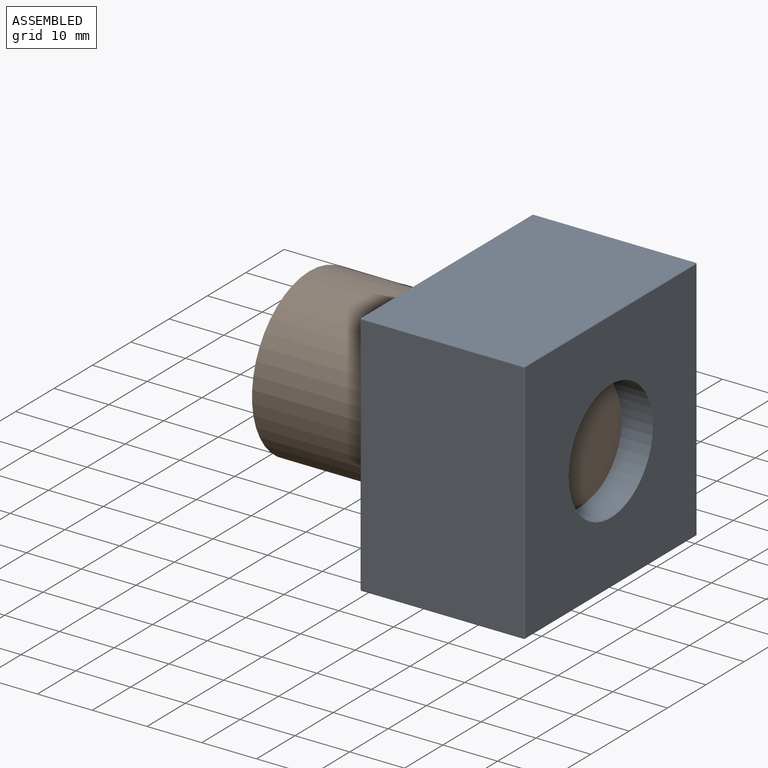
[diagram: assembled view]
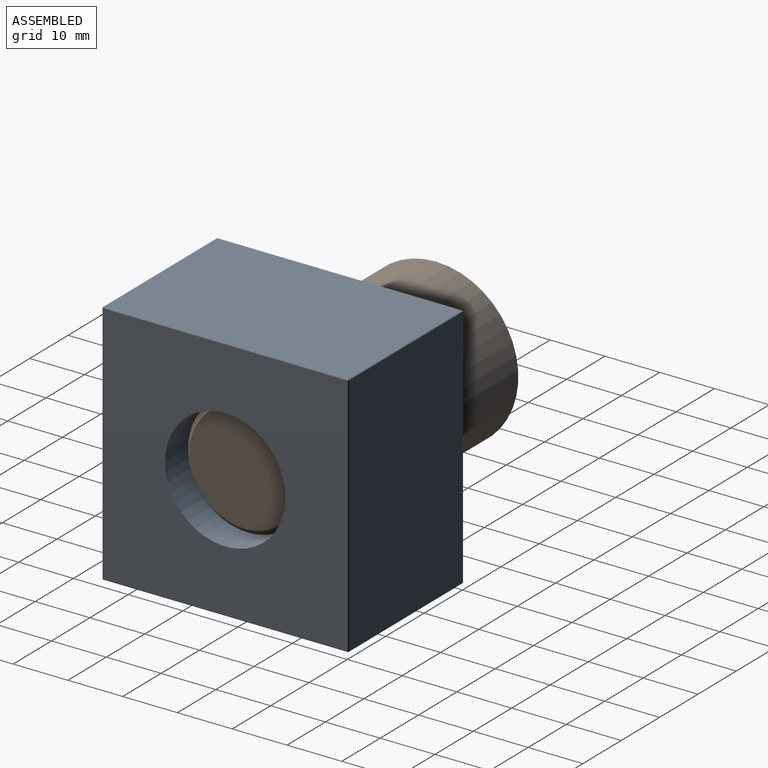
[diagram: assembled view, second angle]
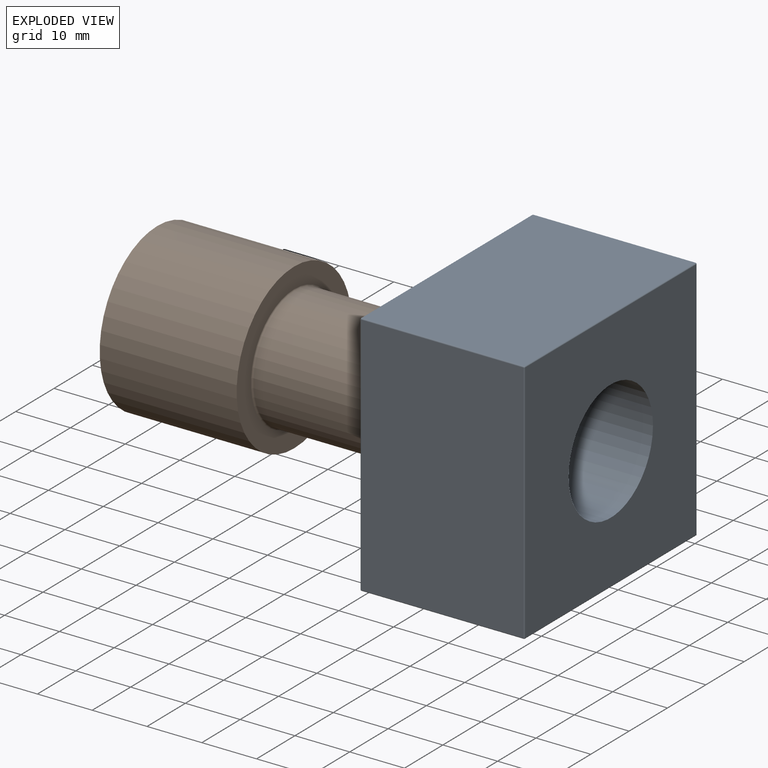
[diagram: exploded view]
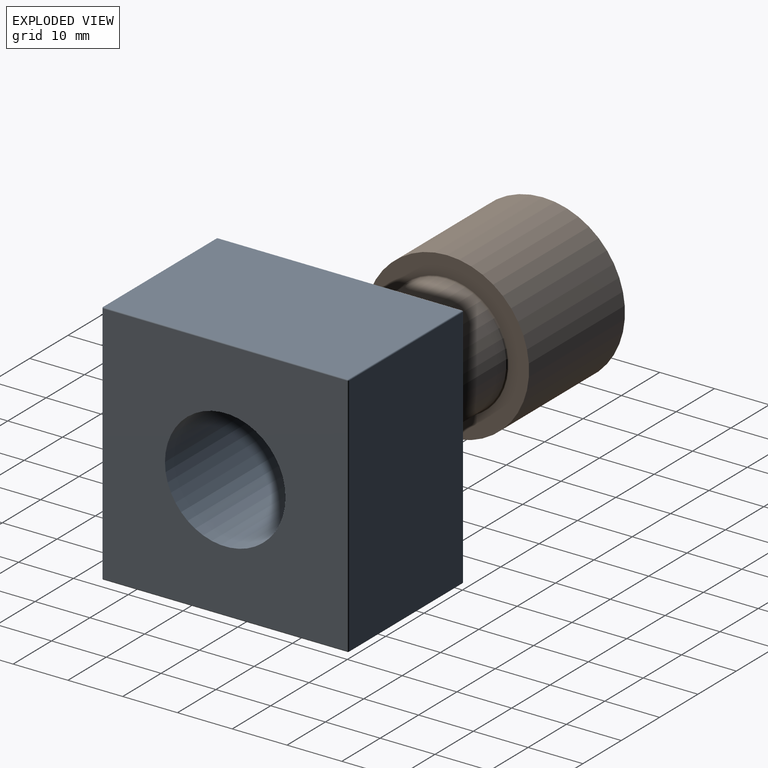
[diagram: exploded view, second angle]
ASSEMBLY  parts=2 mates=2
PART A: 28 faces, bbox 45x30x45 mm
  f0: plane 44.6x29.6mm, normal (1,0,0), area 1320.2mm2, adj f15,f20,f23,f26
  f1: plane 44.6x29.6mm, normal (0,0,1), area 1320.2mm2, adj f12,f21,f22,f26
  f2: plane 44.6x29.6mm, normal (-1,0,0), area 1320.2mm2, adj f7,f11,f12,f13
  f3: plane 44.6x29.6mm, normal (0,0,-1), area 1320.2mm2, adj f7,f10,f14,f15
  f4: cylinder r=11mm len=29mm, axis (0,1,0), area 2004.3mm2, adj f6,f27
  f5: plane 44.6x44.6mm, normal (0,-1,0), area 1536.8mm2, adj f10,f11,f20,f21,f27
  f6: plane 44.6x44.6mm, normal (0,1,0), area 1609mm2, adj f4,f13,f14,f22,f23
  f7: cylinder r=0.2mm len=29.6mm, axis (0,-1,0), area 9.3mm2, adj f2,f3,f8,f9
  f8: sphere r=0.2mm, area 0.1mm2, adj f7,f10,f11
  f9: sphere r=0.2mm, area 0.1mm2, adj f7,f13,f14
  f10: cylinder r=0.2mm len=44.6mm, axis (-1,0,0), area 14mm2, adj f3,f5,f8,f16
  f11: cylinder r=0.2mm len=44.6mm, axis (0,0,1), area 14mm2, adj f2,f5,f8,f17
  f12: cylinder r=0.2mm len=29.6mm, axis (0,1,0), area 9.3mm2, adj f1,f2,f17,f18
  f13: cylinder r=0.2mm len=44.6mm, axis (0,0,-1), area 14mm2, adj f2,f6,f9,f18
  f14: cylinder r=0.2mm len=44.6mm, axis (1,0,0), area 14mm2, adj f3,f6,f9,f19
  f15: cylinder r=0.2mm len=29.6mm, axis (0,1,0), area 9.3mm2, adj f0,f3,f16,f19
  f16: sphere r=0.2mm, area 0.1mm2, adj f10,f15,f20
  f17: sphere r=0.2mm, area 0.1mm2, adj f11,f12,f21
  f18: sphere r=0.2mm, area 0.1mm2, adj f12,f13,f22
  f19: sphere r=0.2mm, area 0.1mm2, adj f14,f15,f23
  f20: cylinder r=0.2mm len=44.6mm, axis (0,0,-1), area 14mm2, adj f0,f5,f16,f24
  f21: cylinder r=0.2mm len=44.6mm, axis (1,0,0), area 14mm2, adj f1,f5,f17,f24
  f22: cylinder r=0.2mm len=44.6mm, axis (-1,0,0), area 14mm2, adj f1,f6,f18,f25
  f23: cylinder r=0.2mm len=44.6mm, axis (0,0,1), area 14mm2, adj f0,f6,f19,f25
  f24: sphere r=0.2mm, area 0.1mm2, adj f20,f21,f26
  f25: sphere r=0.2mm, area 0.1mm2, adj f22,f23,f26
  f26: cylinder r=0.2mm len=29.6mm, axis (0,-1,0), area 9.3mm2, adj f0,f1,f24,f25
  f27: cone r=11mm half-angle=45deg, axis (0,-1,0), area 102.2mm2, adj f4,f5
PART B: 7 faces, bbox 50x30x30 mm
  f0: plane 30x30mm, normal (-1,0,0), area 706.9mm2, adj f4
  f1: plane 20x20mm, normal (1,0,0), area 314.2mm2, adj f5
  f2: cylinder r=11mm len=23.7mm, axis (-1,0,0), area 1638mm2, adj f5,f6
  f3: plane 30x30mm, normal (1,0,0), area 305.7mm2, adj f4,f6
  f4: cylinder r=15mm len=30mm, axis (-1,0,0), area 2356.2mm2, adj f0,f3
  f5: cone r=11mm half-angle=45deg, axis (-1,0,0), area 93.3mm2, adj f1,f2
  f6: torus R=11.3mm, axis (1,0,0), area 32.9mm2, adj f2,f3
PLACE A rot(axis=(-0.58,-0.58,-0.58),120deg) t=(-19.83,-42.17,-15.1)mm
PLACE B t=(-48.89,-42.17,-15.1)mm
MATE planar B.f2 <-> A.f4  axis (1,0,0) through (-49.83,-42.17,-15.1)mm
MATE cylindrical A.f4 <-> B.f2  axis (1,0,0) through (-34.33,-42.17,-15.1)mm
